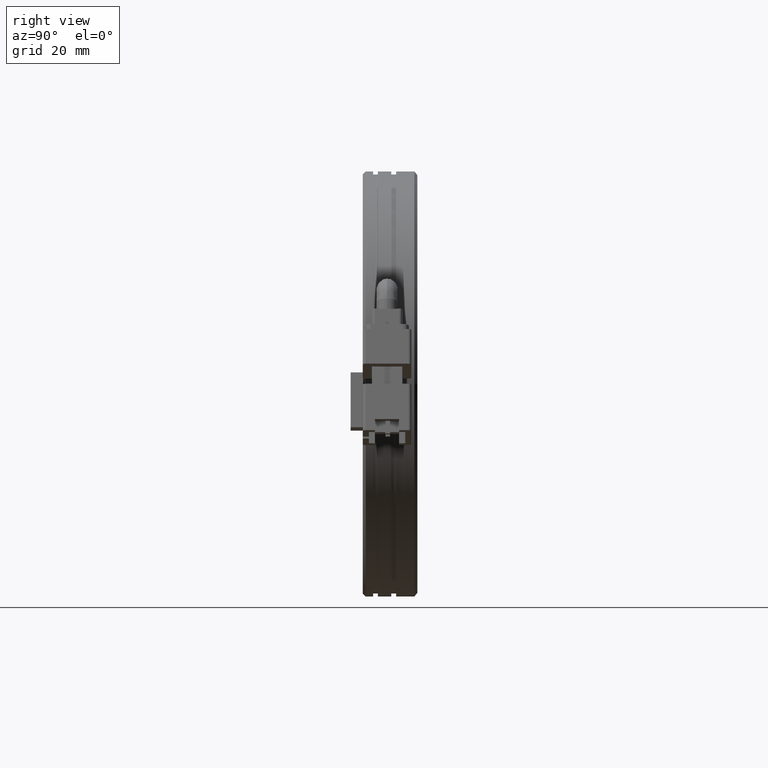
[diagram: clean part render]
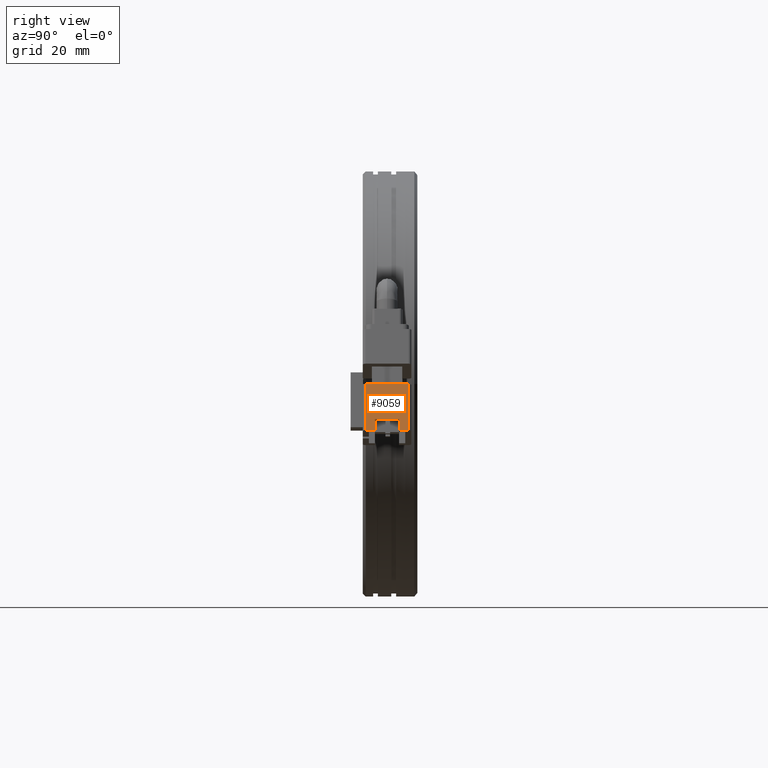
[diagram: same view with one face highlighted and labeled with its STEP entity id]
A machine part, right view. The second image highlights one B-rep face of the part: STEP entity #9059.
In plain terms, the highlighted planar face has unit normal (-0.9511, -0, -0.309).
Its self-contained STEP definition (entity closure, byte-faithful):
#247 = VECTOR ( 'NONE', #24704, 1000.000000000000000 ) ;
#2031 = ORIENTED_EDGE ( 'NONE', *, *, #16037, .F. ) ;
#2321 = VECTOR ( 'NONE', #12032, 1000.000000000000000 ) ;
#4157 = EDGE_CURVE ( 'NONE', #38592, #19385, #25854, .T. ) ;
#5441 = CARTESIAN_POINT ( 'NONE',  ( 56.68987963485529500, 10.26020291540427600, -7.589029002449518800 ) ) ;
#5890 = CARTESIAN_POINT ( 'NONE',  ( 56.09699036482515300, 4.760202915404278200, -5.764303456709915200 ) ) ;
#6580 = DIRECTION ( 'NONE',  ( 0.3090169943749485100, 2.194415329909673200E-016, -0.9510565162951532000 ) ) ;
#8056 = DIRECTION ( 'NONE',  ( -0.3090169943749485100, -1.104552433485933500E-016, 0.9510565162951532000 ) ) ;
#8134 = DIRECTION ( 'NONE',  ( -0.9510565162951533100, -4.745491382970150000E-031, -0.3090169943749485600 ) ) ;
#8427 = LINE ( 'NONE', #27851, #247 ) ;
#8787 = VECTOR ( 'NONE', #18393, 1000.000000000000100 ) ;
#9059 = ADVANCED_FACE ( 'NONE', ( #30384 ), #32767, .F. ) ;
#9211 = VERTEX_POINT ( 'NONE', #15180 ) ;
#11290 = VECTOR ( 'NONE', #6580, 1000.000000000000100 ) ;
#11447 = LINE ( 'NONE', #27541, #2321 ) ;
#12032 = DIRECTION ( 'NONE',  ( -1.392523512205443700E-016, 1.000000000000000000, 1.854886507106402700E-016 ) ) ;
#12883 = VERTEX_POINT ( 'NONE', #38758 ) ;
#13695 = VECTOR ( 'NONE', #33473, 1000.000000000000000 ) ;
#15180 = CARTESIAN_POINT ( 'NONE',  ( 56.68987963485529500, 11.76020291540427800, -7.589029002449525900 ) ) ;
#15254 = ORIENTED_EDGE ( 'NONE', *, *, #36855, .F. ) ;
#15297 = CARTESIAN_POINT ( 'NONE',  ( 56.68987963485530200, 10.26020291540427600, -7.589029002449522400 ) ) ;
#15745 = DIRECTION ( 'NONE',  ( 0.3090169943749485100, 1.104552433485933500E-016, -0.9510565162951532000 ) ) ;
#16037 = EDGE_CURVE ( 'NONE', #19385, #18188, #18564, .T. ) ;
#18164 = CARTESIAN_POINT ( 'NONE',  ( 56.68987963485530200, 4.760202915404278200, -7.589029002449520600 ) ) ;
#18183 = EDGE_CURVE ( 'NONE', #18679, #9211, #8427, .T. ) ;
#18188 = VERTEX_POINT ( 'NONE', #18602 ) ;
#18393 = DIRECTION ( 'NONE',  ( -0.3090169943749485100, -1.104552433485933500E-016, 0.9510565162951532000 ) ) ;
#18564 = LINE ( 'NONE', #18834, #25866 ) ;
#18602 = CARTESIAN_POINT ( 'NONE',  ( 56.68987963485530200, 6.260202915404276400, -7.589029002449522400 ) ) ;
#18679 = VERTEX_POINT ( 'NONE', #5441 ) ;
#18696 = ORIENTED_EDGE ( 'NONE', *, *, #19184, .F. ) ;
#18834 = CARTESIAN_POINT ( 'NONE',  ( 56.68987963485530200, 6.260202915404276400, -7.589029002449524200 ) ) ;
#18893 = CARTESIAN_POINT ( 'NONE',  ( 56.68987963485528800, 11.76020291540427800, -7.589029002449520600 ) ) ;
#19184 = EDGE_CURVE ( 'NONE', #18679, #38592, #39973, .T. ) ;
#19385 = VERTEX_POINT ( 'NONE', #35709 ) ;
#19592 = EDGE_LOOP ( 'NONE', ( #2031, #21716, #18696, #29229, #34044, #34201, #15254, #30361 ) ) ;
#20576 = EDGE_CURVE ( 'NONE', #22922, #12883, #11447, .T. ) ;
#20848 = LINE ( 'NONE', #26621, #37472 ) ;
#20902 = CARTESIAN_POINT ( 'NONE',  ( 56.68987963485530200, 4.760202915404278200, -7.589029002449524200 ) ) ;
#21716 = ORIENTED_EDGE ( 'NONE', *, *, #4157, .F. ) ;
#22922 = VERTEX_POINT ( 'NONE', #39906 ) ;
#23662 = EDGE_CURVE ( 'NONE', #12883, #9211, #40085, .T. ) ;
#24704 = DIRECTION ( 'NONE',  ( -1.392523512205443700E-016, 1.000000000000000000, 1.854886507106402700E-016 ) ) ;
#25854 = LINE ( 'NONE', #5890, #13695 ) ;
#25866 = VECTOR ( 'NONE', #15745, 1000.000000000000100 ) ;
#26621 = CARTESIAN_POINT ( 'NONE',  ( 56.68987963485530200, 4.760202915404278200, -7.589029002449524200 ) ) ;
#26707 = CARTESIAN_POINT ( 'NONE',  ( 56.68987963485530200, 4.760202915404278200, -7.589029002449524200 ) ) ;
#27541 = CARTESIAN_POINT ( 'NONE',  ( 54.21774367985570100, 4.760202915404279100, 0.01942312791169617500 ) ) ;
#27851 = CARTESIAN_POINT ( 'NONE',  ( 56.68987963485529500, 4.760202915404278200, -7.589029002449517100 ) ) ;
#29033 = EDGE_CURVE ( 'NONE', #18188, #35683, #36783, .T. ) ;
#29229 = ORIENTED_EDGE ( 'NONE', *, *, #18183, .T. ) ;
#29919 = DIRECTION ( 'NONE',  ( 3.413254731253629900E-017, -1.000000000000000000, -1.050491789456464500E-016 ) ) ;
#30361 = ORIENTED_EDGE ( 'NONE', *, *, #29033, .F. ) ;
#30384 = FACE_OUTER_BOUND ( 'NONE', #19592, .T. ) ;
#31522 = AXIS2_PLACEMENT_3D ( 'NONE', #26707, #8134, #29919 ) ;
#32767 = PLANE ( 'NONE',  #31522 ) ;
#33354 = DIRECTION ( 'NONE',  ( 3.413254731253629900E-017, -1.000000000000000000, -1.050491789456464500E-016 ) ) ;
#33473 = DIRECTION ( 'NONE',  ( 3.413254731253629900E-017, -1.000000000000000000, -1.050491789456464500E-016 ) ) ;
#34044 = ORIENTED_EDGE ( 'NONE', *, *, #23662, .F. ) ;
#34201 = ORIENTED_EDGE ( 'NONE', *, *, #20576, .F. ) ;
#35683 = VERTEX_POINT ( 'NONE', #18164 ) ;
#35709 = CARTESIAN_POINT ( 'NONE',  ( 56.09699036482515300, 6.260202915404276400, -5.764303456709915200 ) ) ;
#35790 = VECTOR ( 'NONE', #33354, 1000.000000000000000 ) ;
#36783 = LINE ( 'NONE', #20902, #35790 ) ;
#36855 = EDGE_CURVE ( 'NONE', #35683, #22922, #20848, .T. ) ;
#37472 = VECTOR ( 'NONE', #8056, 1000.000000000000100 ) ;
#38307 = CARTESIAN_POINT ( 'NONE',  ( 56.09699036482516000, 10.26020291540427600, -5.764303456709923200 ) ) ;
#38592 = VERTEX_POINT ( 'NONE', #38307 ) ;
#38758 = CARTESIAN_POINT ( 'NONE',  ( 54.21774367985570100, 11.76020291540427800, 0.01942312791169964500 ) ) ;
#39906 = CARTESIAN_POINT ( 'NONE',  ( 54.21774367985570800, 4.760202915404276400, 0.01942312791169487400 ) ) ;
#39973 = LINE ( 'NONE', #15297, #8787 ) ;
#40085 = LINE ( 'NONE', #18893, #11290 ) ;